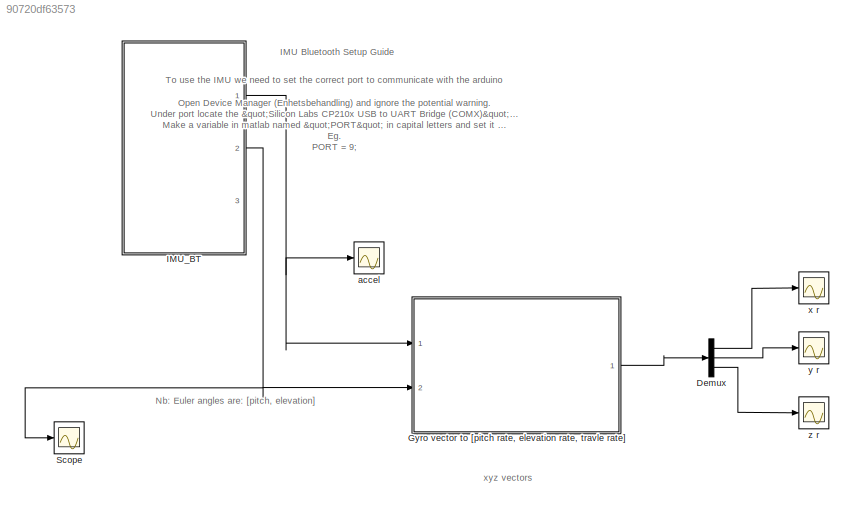
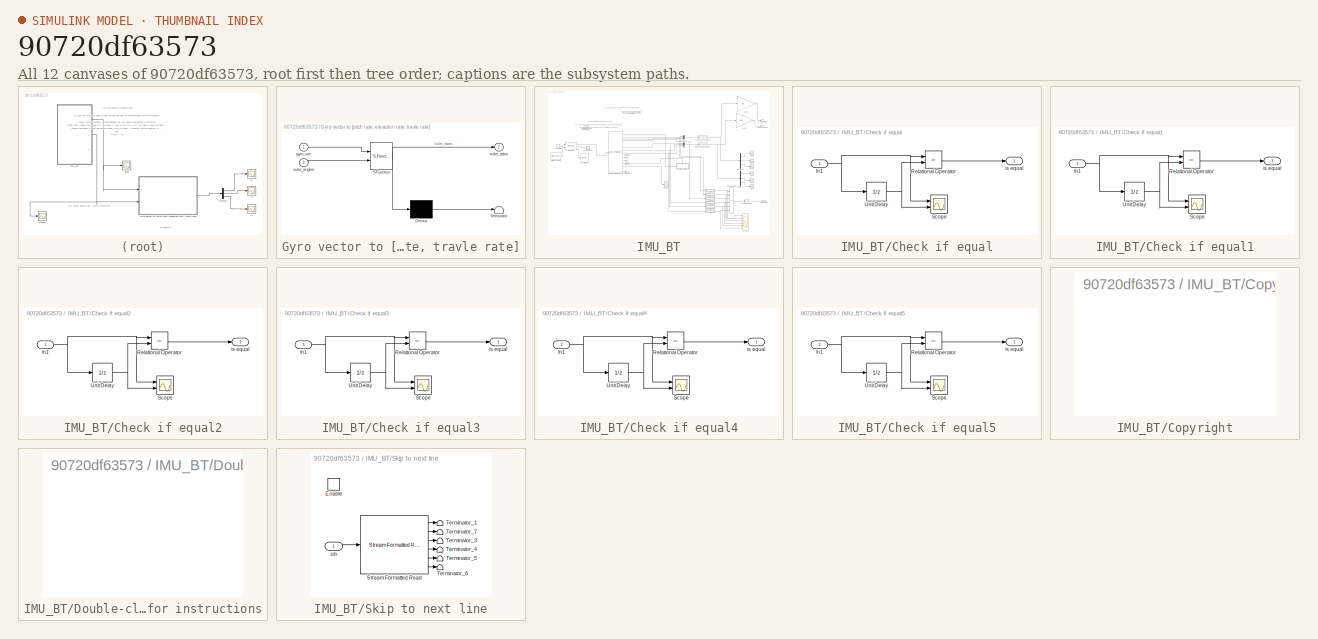
[diagram: thumbnail index - all 12 canvases of the model, root first then tree order]
MODEL slx_90720df63573
KIND model
CONFIG AbsTol = auto
CONFIG EnableMultiTasking = on
CONFIG FixedStep = 0.002
CONFIG MaxStep = auto
CONFIG MinStep = auto
CONFIG RelTol = 1e-3
CONFIG SampleTimeConstraint = Unconstrained
CONFIG SolverName = FixedStepDiscrete
CONFIG StartTime = 0.0
CONFIG StopTime = inf
BLOCK [Demux] Demux
  Outputs = 3
  Ports = [1, 3]
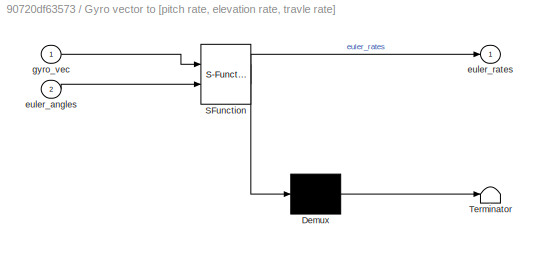
BLOCK [SubSystem] Gyro vector to [pitch rate, elevation rate, travle rate]
  ErrorFcn = Stateflow.Translate.translate
  PermitHierarchicalResolution = ExplicitOnly
  Ports = [2, 1]
  RequestExecContextInheritance = off
  SFBlockType = MATLAB Function
  TreatAsAtomicUnit = on
BLOCK [Demux] Gyro vector to [pitch rate, elevation rate, travle rate]/ Demux 
  Outputs = 1
  Ports = [1, 1]
BLOCK [S-Function] Gyro vector to [pitch rate, elevation rate, travle rate]/ SFunction 
  EnableBusSupport = on
  FunctionName = sf_sfun
  PortCounts = [2 2]
  Ports = [2, 2]
  SFcnIsStateOwnerBlock = off
  SFunctionDeploymentMode = off
  Tag = Stateflow S-Function 2
BLOCK [Terminator] Gyro vector to [pitch rate, elevation rate, travle rate]/ Terminator 
BLOCK [Inport] Gyro vector to [pitch rate, elevation rate, travle rate]/euler_angles
  Port = 2
BLOCK [Outport] Gyro vector to [pitch rate, elevation rate, travle rate]/euler_rates
BLOCK [Inport] Gyro vector to [pitch rate, elevation rate, travle rate]/gyro_vec
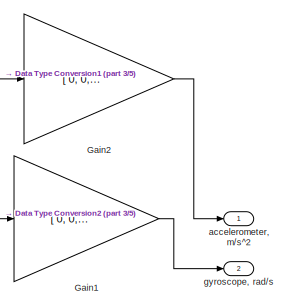
[diagram: IMU_BT - part 1/5, top right region]
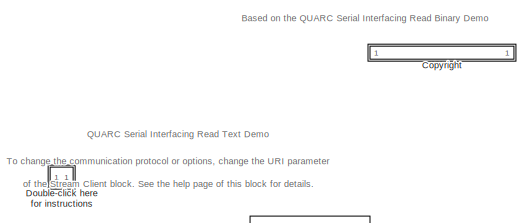
[diagram: IMU_BT - part 2/5, top left region]
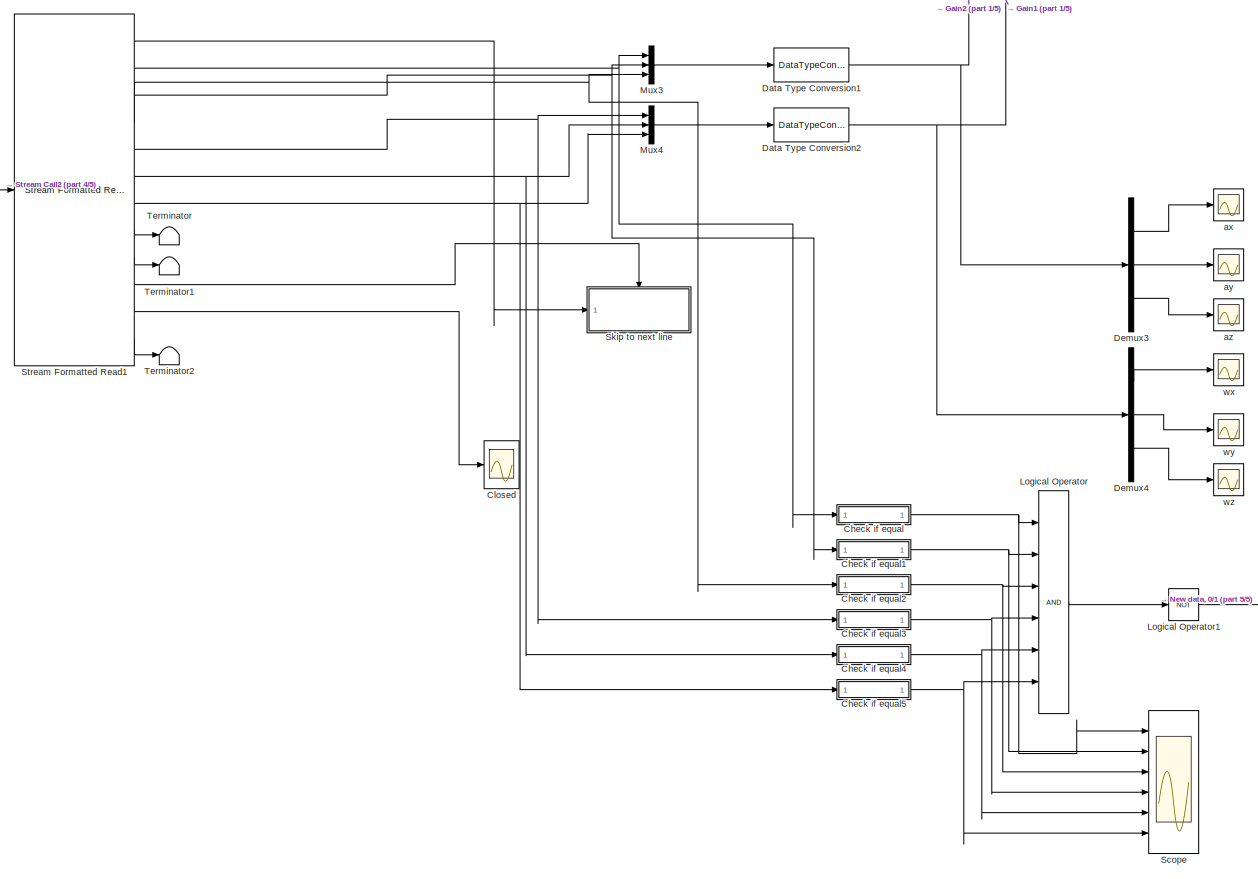
[diagram: IMU_BT - part 3/5, center side, full height]
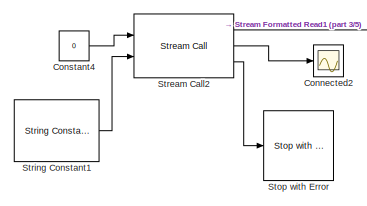
[diagram: IMU_BT - part 4/5, middle left region]
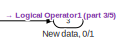
[diagram: IMU_BT - part 5/5, bottom right region]
BLOCK [SubSystem] IMU_BT
  Ports = [0, 3]
  RequestExecContextInheritance = off
BLOCK [SubSystem] IMU_BT/Check if equal
  Ports = [1, 1]
  RequestExecContextInheritance = off
BLOCK [Inport] IMU_BT/Check if equal/In1
BLOCK [RelationalOperator] IMU_BT/Check if equal/Relational Operator
  InputSameDT = off
  Operator = ==
  OutDataTypeStr = boolean
  Ports = [2, 1]
BLOCK [Scope] IMU_BT/Check if equal/Scope
  Floating = off
  NumInputPorts = 2
  Ports = [2]
  ScopeSpecificationString = Simulink.scopes.TimeScopeBlockCfg('CurrentConfiguration', extmgr.ConfigurationSet(extmgr.Configuration('Core','General UI',true),extmgr.Configuration('Core','Source UI',true),extmgr.Configuration('Sources','WiredSimulink',true,'DataLoggingVariableName','ScopeData9'),extmgr.Configuration('Visuals','Time Domain',true,'SerializedDisplays',{struct('MinYLimReal','-1.05125','MaxYLimReal','9.46125','YLab...<+1430ch>
BLOCK [UnitDelay] IMU_BT/Check if equal/Unit Delay
  HasFrameUpgradeWarning = on
  InitialCondition = NaN
  SampleTime = -1
BLOCK [Outport] IMU_BT/Check if equal/is equal
BLOCK [SubSystem] IMU_BT/Check if equal1
  Ports = [1, 1]
  RequestExecContextInheritance = off
BLOCK [Inport] IMU_BT/Check if equal1/In1
BLOCK [RelationalOperator] IMU_BT/Check if equal1/Relational Operator
  InputSameDT = off
  Operator = ==
  OutDataTypeStr = boolean
  Ports = [2, 1]
BLOCK [Scope] IMU_BT/Check if equal1/Scope
  Floating = off
  NumInputPorts = 2
  Ports = [2]
  ScopeSpecificationString = Simulink.scopes.TimeScopeBlockCfg('CurrentConfiguration', extmgr.ConfigurationSet(extmgr.Configuration('Core','General UI',true),extmgr.Configuration('Core','Source UI',true),extmgr.Configuration('Sources','WiredSimulink',true,'DataLoggingVariableName','ScopeData9'),extmgr.Configuration('Visuals','Time Domain',true,'SerializedDisplays',{struct('MinYLimReal','-0.03','MaxYLimReal','0.27','YLabelReal...<+1412ch>
BLOCK [UnitDelay] IMU_BT/Check if equal1/Unit Delay
  HasFrameUpgradeWarning = on
  InitialCondition = NaN
  SampleTime = -1
BLOCK [Outport] IMU_BT/Check if equal1/is equal
BLOCK [SubSystem] IMU_BT/Check if equal2
  Ports = [1, 1]
  RequestExecContextInheritance = off
BLOCK [Inport] IMU_BT/Check if equal2/In1
BLOCK [RelationalOperator] IMU_BT/Check if equal2/Relational Operator
  InputSameDT = off
  Operator = ==
  OutDataTypeStr = boolean
  Ports = [2, 1]
BLOCK [Scope] IMU_BT/Check if equal2/Scope
  Floating = off
  NumInputPorts = 2
  Ports = [2]
  ScopeSpecificationString = Simulink.scopes.TimeScopeBlockCfg('CurrentConfiguration', extmgr.ConfigurationSet(extmgr.Configuration('Core','General UI',true),extmgr.Configuration('Core','Source UI',true),extmgr.Configuration('Sources','WiredSimulink',true,'DataLoggingVariableName','ScopeData9'),extmgr.Configuration('Visuals','Time Domain',true,'SerializedDisplays',{struct('MinYLimReal','-4.7925','MaxYLimReal','0.5325','YLabel...<+1424ch>
BLOCK [UnitDelay] IMU_BT/Check if equal2/Unit Delay
  HasFrameUpgradeWarning = on
  InitialCondition = NaN
  SampleTime = -1
BLOCK [Outport] IMU_BT/Check if equal2/is equal
BLOCK [SubSystem] IMU_BT/Check if equal3
  Ports = [1, 1]
  RequestExecContextInheritance = off
BLOCK [Inport] IMU_BT/Check if equal3/In1
BLOCK [RelationalOperator] IMU_BT/Check if equal3/Relational Operator
  InputSameDT = off
  Operator = ==
  OutDataTypeStr = boolean
  Ports = [2, 1]
BLOCK [Scope] IMU_BT/Check if equal3/Scope
  Floating = off
  NumInputPorts = 2
  Ports = [2]
  ScopeSpecificationString = Simulink.scopes.TimeScopeBlockCfg('CurrentConfiguration', extmgr.ConfigurationSet(extmgr.Configuration('Core','General UI',true),extmgr.Configuration('Core','Source UI',true),extmgr.Configuration('Sources','WiredSimulink',true,'DataLoggingVariableName','ScopeData9'),extmgr.Configuration('Visuals','Time Domain',true,'SerializedDisplays',{struct('MinYLimReal','-0.01125','MaxYLimReal','0.00125','YLab...<+1430ch>
BLOCK [UnitDelay] IMU_BT/Check if equal3/Unit Delay
  HasFrameUpgradeWarning = on
  InitialCondition = NaN
  SampleTime = -1
BLOCK [Outport] IMU_BT/Check if equal3/is equal
BLOCK [SubSystem] IMU_BT/Check if equal4
  Ports = [1, 1]
  RequestExecContextInheritance = off
BLOCK [Inport] IMU_BT/Check if equal4/In1
BLOCK [RelationalOperator] IMU_BT/Check if equal4/Relational Operator
  InputSameDT = off
  Operator = ==
  OutDataTypeStr = boolean
  Ports = [2, 1]
BLOCK [Scope] IMU_BT/Check if equal4/Scope
  Floating = off
  NumInputPorts = 2
  Ports = [2]
  ScopeSpecificationString = Simulink.scopes.TimeScopeBlockCfg('CurrentConfiguration', extmgr.ConfigurationSet(extmgr.Configuration('Core','General UI',true),extmgr.Configuration('Core','Source UI',true),extmgr.Configuration('Sources','WiredSimulink',true,'DataLoggingVariableName','ScopeData9'),extmgr.Configuration('Visuals','Time Domain',true,'SerializedDisplays',{struct('MinYLimReal','-0.045','MaxYLimReal','0.005','YLabelRe...<+1418ch>
BLOCK [UnitDelay] IMU_BT/Check if equal4/Unit Delay
  HasFrameUpgradeWarning = on
  InitialCondition = NaN
  SampleTime = -1
BLOCK [Outport] IMU_BT/Check if equal4/is equal
BLOCK [SubSystem] IMU_BT/Check if equal5
  Ports = [1, 1]
  RequestExecContextInheritance = off
BLOCK [Inport] IMU_BT/Check if equal5/In1
BLOCK [RelationalOperator] IMU_BT/Check if equal5/Relational Operator
  InputSameDT = off
  Operator = ==
  OutDataTypeStr = boolean
  Ports = [2, 1]
BLOCK [Scope] IMU_BT/Check if equal5/Scope
  Floating = off
  NumInputPorts = 2
  Ports = [2]
  ScopeSpecificationString = Simulink.scopes.TimeScopeBlockCfg('CurrentConfiguration', extmgr.ConfigurationSet(extmgr.Configuration('Core','General UI',true),extmgr.Configuration('Core','Source UI',true),extmgr.Configuration('Sources','WiredSimulink',true,'DataLoggingVariableName','ScopeData9'),extmgr.Configuration('Visuals','Time Domain',true,'SerializedDisplays',{struct('MinYLimReal','-0.00125','MaxYLimReal','0.01125','YLab...<+1430ch>
BLOCK [UnitDelay] IMU_BT/Check if equal5/Unit Delay
  HasFrameUpgradeWarning = on
  InitialCondition = NaN
  SampleTime = -1
BLOCK [Outport] IMU_BT/Check if equal5/is equal
BLOCK [Scope] IMU_BT/Closed
  Floating = off
  NumInputPorts = 1
  Ports = [1]
  ScopeSpecificationString = C++SS(StrPVP('SaveName','ScopeData1'),StrPVP('LimitDataPoints','on'),StrPVP('DataFormat','Array'),StrPVP('Decimation','1'),StrPVP('BlockParamSampleInput','off'))
BLOCK [Scope] IMU_BT/Connected2
  Floating = off
  NumInputPorts = 1
  Ports = [1]
  ScopeSpecificationString = C++SS(StrPVP('SaveName','ScopeData2'),StrPVP('LimitDataPoints','on'),StrPVP('DataFormat','Array'),StrPVP('Decimation','1'),StrPVP('BlockParamSampleInput','off'))
BLOCK [Constant] IMU_BT/Constant4
  Value = 0
BLOCK [SubSystem] IMU_BT/<copyright redacted>
  OpenFcn = web('http://www.quanser.com/');
  Permissions = NoReadOrWrite
  PermitHierarchicalResolution = None
  Ports = []
  RequestExecContextInheritance = off
BLOCK [DataTypeConversion] IMU_BT/Data Type Conversion1
  OutDataTypeStr = double
  RndMeth = Floor
  SaturateOnIntegerOverflow = off
BLOCK [DataTypeConversion] IMU_BT/Data Type Conversion2
  OutDataTypeStr = double
  RndMeth = Floor
  SaturateOnIntegerOverflow = off
BLOCK [Demux] IMU_BT/Demux3
  Outputs = 3
  Ports = [1, 3]
BLOCK [Demux] IMU_BT/Demux4
  Outputs = 3
  Ports = [1, 3]
BLOCK [SubSystem] IMU_BT/Double-click here for instructions
  OpenFcn = qc_show_demo('quarc_serial_interfacing_text_demo');
  Permissions = NoReadOrWrite
  PermitHierarchicalResolution = None
  Ports = []
  RequestExecContextInheritance = off
BLOCK [Gain] IMU_BT/Gain1
  Gain = [ 0, 0, 1; 0, 1, 0; -1, 0, 0]
  Multiplication = Matrix(K*u) (u vector)
BLOCK [Gain] IMU_BT/Gain2
  Gain = [ 0, 0, 1; 0, 1, 0; -1, 0, 0]
  Multiplication = Matrix(K*u) (u vector)
BLOCK [Logic] IMU_BT/Logical Operator
  AllPortsSameDT = off
  Inputs = 6
  OutDataTypeStr = boolean
  Ports = [6, 1]
BLOCK [Logic] IMU_BT/Logical Operator1
  AllPortsSameDT = off
  Operator = NOT
  OutDataTypeStr = boolean
  Ports = [1, 1]
BLOCK [Mux] IMU_BT/Mux3
  DisplayOption = bar
  Inputs = 3
  Ports = [3, 1]
BLOCK [Mux] IMU_BT/Mux4
  DisplayOption = bar
  Inputs = 3
  Ports = [3, 1]
BLOCK [Outport] IMU_BT/New data, 0//1
  Port = 3
BLOCK [Scope] IMU_BT/Scope
  Floating = off
  NumInputPorts = 6
  Ports = [6]
  ScopeSpecificationString = Simulink.scopes.TimeScopeBlockCfg('CurrentConfiguration', extmgr.ConfigurationSet(extmgr.Configuration('Core','General UI',true),extmgr.Configuration('Core','Source UI',true),extmgr.Configuration('Sources','WiredSimulink',true,'DataLoggingVariableName','ScopeData4','DataLoggingLimitDataPoints',true,'DataLoggingSaveFormat','Array','DataLoggingDecimation','1','DataLoggingDecimateData',true),extmgr.C...<+1576ch>
BLOCK [SubSystem] IMU_BT/Skip to next line
  Ports = [1, 0, 1]
  RequestExecContextInheritance = off
  TreatAsAtomicUnit = on
BLOCK [EnablePort] IMU_BT/Skip to next line/Enable
  Ports = []
BLOCK [Reference] IMU_BT/Skip to next line/Stream Formatted Read  REF=quarc_library/Communications/Intermediate/Stream Formatted
Read
  Ports = [1, 6]
  SourceBlock = quarc_library/Communications/Intermediate/Stream Formatted\nRead
  SourceProductName = QUARC Targets
  SourceType = Stream Formatted Read
BLOCK [Terminator] IMU_BT/Skip to next line/Terminator_1
BLOCK [Terminator] IMU_BT/Skip to next line/Terminator_3
BLOCK [Terminator] IMU_BT/Skip to next line/Terminator_4
BLOCK [Terminator] IMU_BT/Skip to next line/Terminator_5
BLOCK [Terminator] IMU_BT/Skip to next line/Terminator_6
BLOCK [Terminator] IMU_BT/Skip to next line/Terminator_7
BLOCK [Inport] IMU_BT/Skip to next line/stn
BLOCK [Reference] IMU_BT/Stop with Error  REF=quarc_library/Sinks/Error Handling/Stop with Error
  Ports = [1]
  SourceBlock = quarc_library/Sinks/Error Handling/Stop with Error
  SourceProductName = QUARC Targets
  SourceType = Stop with Error
BLOCK [Reference] IMU_BT/Stream Call2  REF=quarc_library/Communications/Intermediate/Stream Call
  Ports = [2, 3]
  SourceBlock = quarc_library/Communications/Intermediate/Stream Call
  SourceProductName = QUARC Targets
  SourceType = Stream Call
BLOCK [Reference] IMU_BT/Stream Formatted Read1  REF=quarc_library/Communications/Intermediate/Stream Formatted
Read
  Ports = [1, 12]
  SourceBlock = quarc_library/Communications/Intermediate/Stream Formatted\nRead
  SourceProductName = QUARC Targets
  SourceType = Stream Formatted Read
BLOCK [Reference] IMU_BT/String Constant1  REF=quarc_library/Strings/String Constant
  AttributesFormatString = "serial://IMU:3?baud=115200,word=8,parity=none,stop=1"
  Ports = [0, 1]
  SourceBlock = quarc_library/Strings/String Constant
  SourceProductName = QUARC Targets
  SourceType = String Constant
BLOCK [Terminator] IMU_BT/Terminator
BLOCK [Terminator] IMU_BT/Terminator1
BLOCK [Terminator] IMU_BT/Terminator2
BLOCK [Outport] IMU_BT/accelerometer, m//s^2
BLOCK [Scope] IMU_BT/ax
  Floating = off
  NumInputPorts = 1
  Ports = [1]
  ScopeSpecificationString = Simulink.scopes.TimeScopeBlockCfg('CurrentConfiguration', extmgr.ConfigurationSet(extmgr.Configuration('Core','General UI',true),extmgr.Configuration('Core','Source UI',true),extmgr.Configuration('Sources','WiredSimulink',true,'DataLoggingVariableName','ScopeData5','DataLoggingLimitDataPoints',true,'DataLoggingSaveFormat','Array','DataLoggingDecimation','1','DataLoggingDecimateData',true),extmgr.C...<+1495ch>
BLOCK [Scope] IMU_BT/ay
  Floating = off
  NumInputPorts = 1
  Ports = [1]
  ScopeSpecificationString = Simulink.scopes.TimeScopeBlockCfg('CurrentConfiguration', extmgr.ConfigurationSet(extmgr.Configuration('Core','General UI',true),extmgr.Configuration('Core','Source UI',true),extmgr.Configuration('Sources','WiredSimulink',true,'DataLoggingVariableName','ScopeData7','DataLoggingLimitDataPoints',true,'DataLoggingSaveFormat','Array','DataLoggingDecimation','1','DataLoggingDecimateData',true),extmgr.C...<+1520ch>
BLOCK [Scope] IMU_BT/az
  Floating = off
  NumInputPorts = 1
  Ports = [1]
  ScopeSpecificationString = Simulink.scopes.TimeScopeBlockCfg('CurrentConfiguration', extmgr.ConfigurationSet(extmgr.Configuration('Core','General UI',true),extmgr.Configuration('Core','Source UI',true),extmgr.Configuration('Sources','WiredSimulink',true,'DataLoggingVariableName','ScopeData9','DataLoggingLimitDataPoints',true,'DataLoggingSaveFormat','Array','DataLoggingDecimation','1','DataLoggingDecimateData',true),extmgr.C...<+1513ch>
BLOCK [Outport] IMU_BT/gyroscope, rad//s
  Port = 2
BLOCK [Scope] IMU_BT/wx
  Floating = off
  NumInputPorts = 1
  Ports = [1]
  ScopeSpecificationString = Simulink.scopes.TimeScopeBlockCfg('CurrentConfiguration', extmgr.ConfigurationSet(extmgr.Configuration('Core','General UI',true),extmgr.Configuration('Core','Source UI',true),extmgr.Configuration('Sources','WiredSimulink',true,'DataLoggingVariableName','ScopeData13','DataLoggingLimitDataPoints',true,'DataLoggingSaveFormat','Array','DataLoggingDecimation','1','DataLoggingDecimateData',true),extmgr....<+1520ch>
BLOCK [Scope] IMU_BT/wy
  Floating = off
  NumInputPorts = 1
  Ports = [1]
  ScopeSpecificationString = Simulink.scopes.TimeScopeBlockCfg('CurrentConfiguration', extmgr.ConfigurationSet(extmgr.Configuration('Core','General UI',true),extmgr.Configuration('Core','Source UI',true),extmgr.Configuration('Sources','WiredSimulink',true,'DataLoggingVariableName','ScopeData15','DataLoggingLimitDataPoints',true,'DataLoggingSaveFormat','Array','DataLoggingDecimation','1','DataLoggingDecimateData',true),extmgr....<+1493ch>
BLOCK [Scope] IMU_BT/wz
  Floating = off
  NumInputPorts = 1
  Ports = [1]
  ScopeSpecificationString = Simulink.scopes.TimeScopeBlockCfg('CurrentConfiguration', extmgr.ConfigurationSet(extmgr.Configuration('Core','General UI',true),extmgr.Configuration('Core','Source UI',true),extmgr.Configuration('Sources','WiredSimulink',true,'DataLoggingVariableName','ScopeData17','DataLoggingLimitDataPoints',true,'DataLoggingSaveFormat','Array','DataLoggingDecimation','1','DataLoggingDecimateData',true),extmgr....<+1525ch>
BLOCK [Scope] Scope
  Floating = off
  NumInputPorts = 1
  Ports = [1]
  ScopeSpecificationString = Simulink.scopes.TimeScopeBlockCfg('CurrentConfiguration', extmgr.ConfigurationSet(extmgr.Configuration('Core','General UI',true),extmgr.Configuration('Core','Source UI',true),extmgr.Configuration('Sources','WiredSimulink',true,'DataLoggingVariableName','ScopeData4'),extmgr.Configuration('Visuals','Time Domain',true),extmgr.Configuration('Tools','Plot Navigation',true),extmgr.Configuration('Tools',...<+40ch>
BLOCK [Scope] accel
  Floating = off
  NumInputPorts = 1
  Ports = [1]
  ScopeSpecificationString = Simulink.scopes.TimeScopeBlockCfg('CurrentConfiguration', extmgr.ConfigurationSet(extmgr.Configuration('Core','General UI',true),extmgr.Configuration('Core','Source UI',true),extmgr.Configuration('Sources','WiredSimulink',true,'DataLoggingVariableName','ScopeData5'),extmgr.Configuration('Visuals','Time Domain',true),extmgr.Configuration('Tools','Plot Navigation',true),extmgr.Configuration('Tools',...<+40ch>
BLOCK [Scope] x r
  Floating = off
  NumInputPorts = 1
  Ports = [1]
  ScopeSpecificationString = Simulink.scopes.TimeScopeBlockCfg('CurrentConfiguration', extmgr.ConfigurationSet(extmgr.Configuration('Core','General UI',true),extmgr.Configuration('Core','Source UI',true),extmgr.Configuration('Sources','WiredSimulink',true,'DataLoggingVariableName','ScopeData1'),extmgr.Configuration('Visuals','Time Domain',true,'SerializedDisplays',{struct('MinYLimReal','-5.0625','MaxYLimReal','0.5625','YLabel...<+1391ch>
BLOCK [Scope] y r
  Floating = off
  NumInputPorts = 1
  Ports = [1]
  ScopeSpecificationString = Simulink.scopes.TimeScopeBlockCfg('CurrentConfiguration', extmgr.ConfigurationSet(extmgr.Configuration('Core','General UI',true),extmgr.Configuration('Core','Source UI',true),extmgr.Configuration('Sources','WiredSimulink',true,'DataLoggingVariableName','ScopeData2'),extmgr.Configuration('Visuals','Time Domain',true,'SerializedDisplays',{struct('MinYLimReal','-0.04014','MaxYLimReal','0.36125','YLab...<+1396ch>
BLOCK [Scope] z  r
  Floating = off
  NumInputPorts = 1
  Ports = [1]
  ScopeSpecificationString = Simulink.scopes.TimeScopeBlockCfg('CurrentConfiguration', extmgr.ConfigurationSet(extmgr.Configuration('Core','General UI',true),extmgr.Configuration('Core','Source UI',true),extmgr.Configuration('Sources','WiredSimulink',true,'DataLoggingVariableName','ScopeData3'),extmgr.Configuration('Visuals','Time Domain',true,'SerializedDisplays',{struct('MinYLimReal','-10.80186','MaxYLimReal','-6.19136','YL...<+1449ch>
ANNOTATION (root): To use the IMU we need to set the correct port to communicate with the arduino Open Device Manager (Enhetsbehandling) and ignore the potential warning. Under port locate the "Silicon Labs CP210x USB to UART Bridge (COMX)". The X is the port number we need to use. Make a variable in matlab named "PORT" in capital letters and set it equal the port number. Eg. PORT = 9;
ANNOTATION (root): IMU Bluetooth Setup Guide
ANNOTATION (root): Nb: Euler angles are: [pitch, elevation]
ANNOTATION (root): xyz vectors
ANNOTATION IMU_BT: Based on the QUARC Serial Interfacing Read Binary Demo
ANNOTATION IMU_BT: QUARC Serial Interfacing Read Text Demo
ANNOTATION IMU_BT: To change the communication protocol or options, change the URI parameter of the Stream Client block. See the help page of this block for details.
LINE Demux:1 -> x r:1
LINE Demux:2 -> y r:1
LINE Demux:3 -> z  r:1
LINE Gyro vector to [pitch rate, elevation rate, travle rate]:1 -> Demux:1
NET IMU_BT/Check if equal/In1:1 -> IMU_BT/Check if equal/Relational Operator:1, IMU_BT/Check if equal/Scope:1, IMU_BT/Check if equal/Unit Delay:1
LINE IMU_BT/Check if equal/Relational Operator:1 -> IMU_BT/Check if equal/is equal:1
NET IMU_BT/Check if equal/Unit Delay:1 -> IMU_BT/Check if equal/Relational Operator:2, IMU_BT/Check if equal/Scope:2
NET IMU_BT/Check if equal1/In1:1 -> IMU_BT/Check if equal1/Relational Operator:1, IMU_BT/Check if equal1/Scope:1, IMU_BT/Check if equal1/Unit Delay:1
LINE IMU_BT/Check if equal1/Relational Operator:1 -> IMU_BT/Check if equal1/is equal:1
NET IMU_BT/Check if equal1/Unit Delay:1 -> IMU_BT/Check if equal1/Relational Operator:2, IMU_BT/Check if equal1/Scope:2
NET IMU_BT/Check if equal1:1 -> IMU_BT/Logical Operator:2, IMU_BT/Scope:2
NET IMU_BT/Check if equal2/In1:1 -> IMU_BT/Check if equal2/Relational Operator:1, IMU_BT/Check if equal2/Scope:1, IMU_BT/Check if equal2/Unit Delay:1
LINE IMU_BT/Check if equal2/Relational Operator:1 -> IMU_BT/Check if equal2/is equal:1
NET IMU_BT/Check if equal2/Unit Delay:1 -> IMU_BT/Check if equal2/Relational Operator:2, IMU_BT/Check if equal2/Scope:2
NET IMU_BT/Check if equal2:1 -> IMU_BT/Logical Operator:3, IMU_BT/Scope:3
NET IMU_BT/Check if equal3/In1:1 -> IMU_BT/Check if equal3/Relational Operator:1, IMU_BT/Check if equal3/Scope:1, IMU_BT/Check if equal3/Unit Delay:1
LINE IMU_BT/Check if equal3/Relational Operator:1 -> IMU_BT/Check if equal3/is equal:1
NET IMU_BT/Check if equal3/Unit Delay:1 -> IMU_BT/Check if equal3/Relational Operator:2, IMU_BT/Check if equal3/Scope:2
NET IMU_BT/Check if equal3:1 -> IMU_BT/Logical Operator:4, IMU_BT/Scope:4
NET IMU_BT/Check if equal4/In1:1 -> IMU_BT/Check if equal4/Relational Operator:1, IMU_BT/Check if equal4/Scope:1, IMU_BT/Check if equal4/Unit Delay:1
LINE IMU_BT/Check if equal4/Relational Operator:1 -> IMU_BT/Check if equal4/is equal:1
NET IMU_BT/Check if equal4/Unit Delay:1 -> IMU_BT/Check if equal4/Relational Operator:2, IMU_BT/Check if equal4/Scope:2
NET IMU_BT/Check if equal4:1 -> IMU_BT/Logical Operator:5, IMU_BT/Scope:5
NET IMU_BT/Check if equal5/In1:1 -> IMU_BT/Check if equal5/Relational Operator:1, IMU_BT/Check if equal5/Scope:1, IMU_BT/Check if equal5/Unit Delay:1
LINE IMU_BT/Check if equal5/Relational Operator:1 -> IMU_BT/Check if equal5/is equal:1
NET IMU_BT/Check if equal5/Unit Delay:1 -> IMU_BT/Check if equal5/Relational Operator:2, IMU_BT/Check if equal5/Scope:2
NET IMU_BT/Check if equal5:1 -> IMU_BT/Logical Operator:6, IMU_BT/Scope:6
NET IMU_BT/Check if equal:1 -> IMU_BT/Logical Operator:1, IMU_BT/Scope:1
LINE IMU_BT/Constant4:1 -> IMU_BT/Stream Call2:1
NET IMU_BT/Data Type Conversion1:1 -> IMU_BT/Demux3:1, IMU_BT/Gain2:1
NET IMU_BT/Data Type Conversion2:1 -> IMU_BT/Demux4:1, IMU_BT/Gain1:1
LINE IMU_BT/Demux3:1 -> IMU_BT/ax:1
LINE IMU_BT/Demux3:2 -> IMU_BT/ay:1
LINE IMU_BT/Demux3:3 -> IMU_BT/az:1
LINE IMU_BT/Demux4:1 -> IMU_BT/wx:1
LINE IMU_BT/Demux4:2 -> IMU_BT/wy:1
LINE IMU_BT/Demux4:3 -> IMU_BT/wz:1
LINE IMU_BT/Gain1:1 -> IMU_BT/gyroscope, rad//s:1
LINE IMU_BT/Gain2:1 -> IMU_BT/accelerometer, m//s^2:1
LINE IMU_BT/Logical Operator1:1 -> IMU_BT/New data, 0//1:1
LINE IMU_BT/Logical Operator:1 -> IMU_BT/Logical Operator1:1
LINE IMU_BT/Mux3:1 -> IMU_BT/Data Type Conversion1:1
LINE IMU_BT/Mux4:1 -> IMU_BT/Data Type Conversion2:1
LINE IMU_BT/Skip to next line/Stream Formatted Read:1 -> IMU_BT/Skip to next line/Terminator_1:1
LINE IMU_BT/Skip to next line/Stream Formatted Read:2 -> IMU_BT/Skip to next line/Terminator_7:1
LINE IMU_BT/Skip to next line/Stream Formatted Read:3 -> IMU_BT/Skip to next line/Terminator_3:1
LINE IMU_BT/Skip to next line/Stream Formatted Read:4 -> IMU_BT/Skip to next line/Terminator_4:1
LINE IMU_BT/Skip to next line/Stream Formatted Read:5 -> IMU_BT/Skip to next line/Terminator_5:1
LINE IMU_BT/Skip to next line/Stream Formatted Read:6 -> IMU_BT/Skip to next line/Terminator_6:1
LINE IMU_BT/Skip to next line/stn:1 -> IMU_BT/Skip to next line/Stream Formatted Read:1
LINE IMU_BT/Stream Call2:1 -> IMU_BT/Stream Formatted Read1:1
LINE IMU_BT/Stream Call2:2 -> IMU_BT/Connected2:1
LINE IMU_BT/Stream Call2:3 -> IMU_BT/Stop with Error:1
LINE IMU_BT/Stream Formatted Read1:1 -> IMU_BT/Skip to next line:1
LINE IMU_BT/Stream Formatted Read1:10 -> IMU_BT/Skip to next line:enable
LINE IMU_BT/Stream Formatted Read1:11 -> IMU_BT/Closed:1
LINE IMU_BT/Stream Formatted Read1:12 -> IMU_BT/Terminator2:1
NET IMU_BT/Stream Formatted Read1:2 -> IMU_BT/Check if equal:1, IMU_BT/Mux3:1
NET IMU_BT/Stream Formatted Read1:3 -> IMU_BT/Check if equal1:1, IMU_BT/Mux3:2
NET IMU_BT/Stream Formatted Read1:4 -> IMU_BT/Check if equal2:1, IMU_BT/Mux3:3
NET IMU_BT/Stream Formatted Read1:5 -> IMU_BT/Check if equal3:1, IMU_BT/Mux4:1
NET IMU_BT/Stream Formatted Read1:6 -> IMU_BT/Check if equal4:1, IMU_BT/Mux4:2
NET IMU_BT/Stream Formatted Read1:7 -> IMU_BT/Check if equal5:1, IMU_BT/Mux4:3
LINE IMU_BT/Stream Formatted Read1:8 -> IMU_BT/Terminator:1
LINE IMU_BT/Stream Formatted Read1:9 -> IMU_BT/Terminator1:1
LINE IMU_BT/String Constant1:1 -> IMU_BT/Stream Call2:2
NET IMU_BT:1 -> Gyro vector to [pitch rate, elevation rate, travle rate]:1, accel:1
NET IMU_BT:2 -> Gyro vector to [pitch rate, elevation rate, travle rate]:2, Scope:1
note: NET lines group one-source signal fan-out (src -> all destinations, sorted); 1:1 wires keep LINE
CHART Gyro vector to [pitch rate, elevation rate, travle rate] states=1 transitions=1
  STATE_LABEL 'eML_blk_kernel()'
  STATE_LABEL 'SCRIPT:\nfunction euler_rates = gyro_vec_to_euler_rates(gyro_vec,euler_angles)\n%#codegen\n    phi = euler_angles(1);\n    theta = euler_angles(2);\n\n    T = [1, sin(phi)*tan(theta), cos(phi)*tan(theta);\n         0, cos(phi),            -sin(phi);\n         0, sin(phi)/cos(theta), cos(phi)/cos(theta)]; \neuler_rates = T*gyro_vec;'
CHART  states=0 transitions=0
